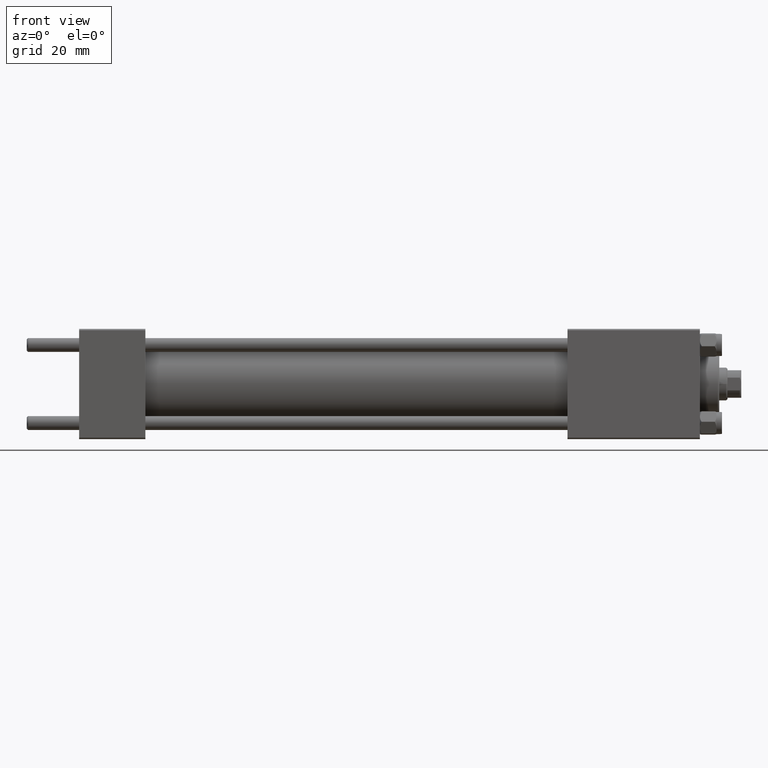
[diagram: clean part render]
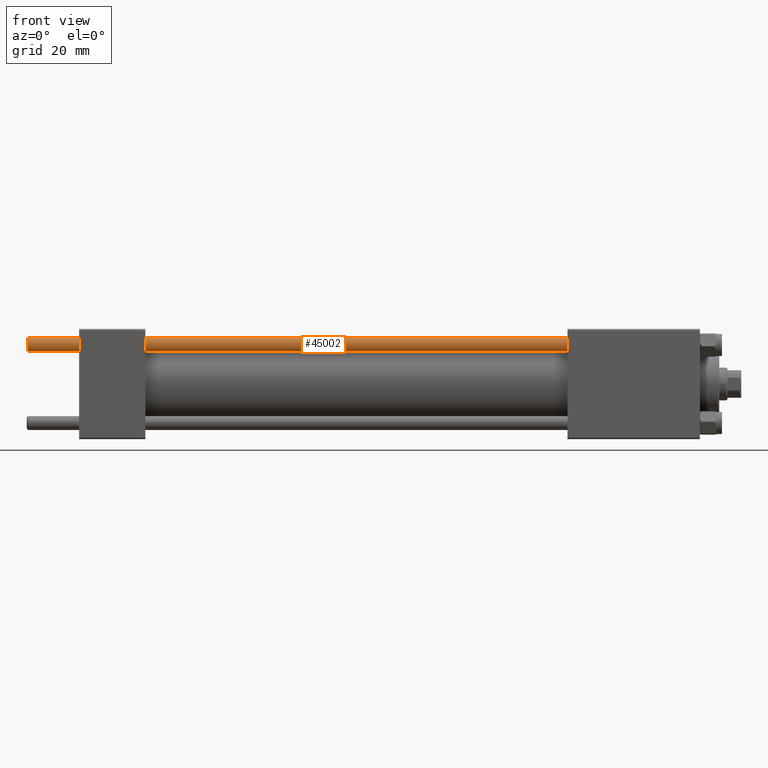
[diagram: same view with one face highlighted and labeled with its STEP entity id]
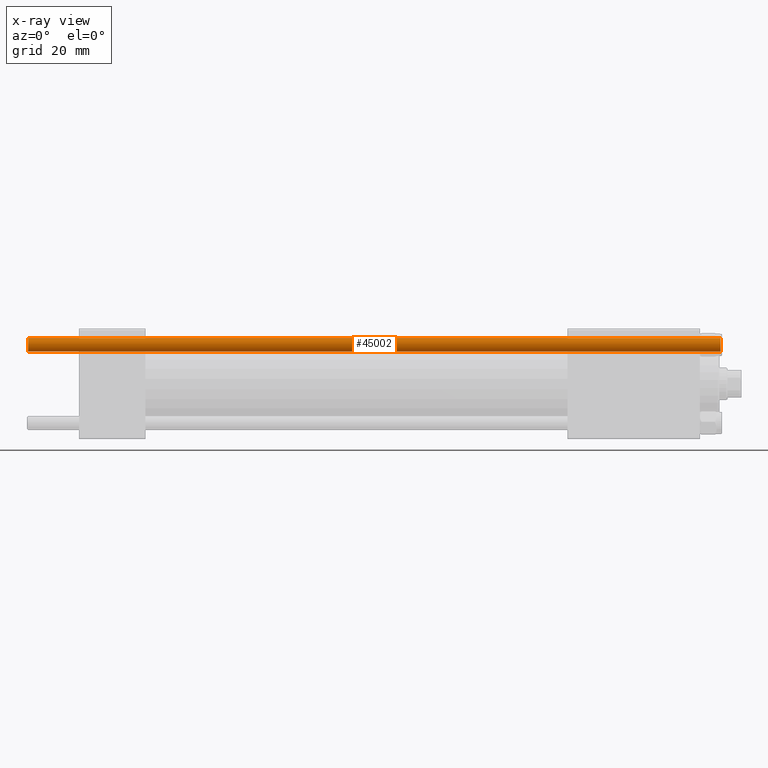
[diagram: x-ray of the same camera — body ghosted, the highlighted face saturated]
A machine part, front view. The second image highlights one B-rep face of the part: STEP entity #45002.
The next image is the same camera in x-ray: the body ghosted, the highlighted face saturated — about 0% of this face is hidden behind the body in this view.
In plain terms, the highlighted cylindrical surface (edge-blend (fillet) strip) has radius 2.5 mm, axis along (1, -0, 0).
Its self-contained STEP definition (entity closure, byte-faithful):
#579 = EDGE_CURVE ( 'NONE', #8456, #40892, #44209, .T. ) ;
#613 = VERTEX_POINT ( 'NONE', #1534 ) ;
#747 = ORIENTED_EDGE ( 'NONE', *, *, #24050, .T. ) ;
#866 = CARTESIAN_POINT ( 'NONE',  ( -2.500000000000000000, 0.000000000000000000, 0.5000000000000004441 ) ) ;
#1534 = CARTESIAN_POINT ( 'NONE',  ( 2.500000000000000000, 3.061616997868383141E-16, 251.5000000000000000 ) ) ;
#2275 = DIRECTION ( 'NONE',  ( -0.000000000000000000, -0.000000000000000000, -1.000000000000000000 ) ) ;
#3713 = EDGE_CURVE ( 'NONE', #48394, #40892, #43572, .T. ) ;
#4668 = DIRECTION ( 'NONE',  ( -0.000000000000000000, -0.000000000000000000, 1.000000000000000000 ) ) ;
#4993 = ORIENTED_EDGE ( 'NONE', *, *, #579, .F. ) ;
#5838 = LINE ( 'NONE', #9155, #16689 ) ;
#6833 = ORIENTED_EDGE ( 'NONE', *, *, #3713, .T. ) ;
#7454 = CYLINDRICAL_SURFACE ( 'NONE', #39018, 2.500000000000000000 ) ;
#8297 = CARTESIAN_POINT ( 'NONE',  ( 0.000000000000000000, 0.000000000000000000, 251.5000000000000000 ) ) ;
#8456 = VERTEX_POINT ( 'NONE', #17719 ) ;
#9155 = CARTESIAN_POINT ( 'NONE',  ( 2.500000000000000000, 3.061616997868383141E-16, 252.0000000000000000 ) ) ;
#9653 = DIRECTION ( 'NONE',  ( -0.000000000000000000, -0.000000000000000000, -1.000000000000000000 ) ) ;
#12861 = DIRECTION ( 'NONE',  ( 1.000000000000000000, 0.000000000000000000, 0.000000000000000000 ) ) ;
#16689 = VECTOR ( 'NONE', #9653, 1000.000000000000000 ) ;
#16993 = AXIS2_PLACEMENT_3D ( 'NONE', #31698, #4668, #39003 ) ;
#17719 = CARTESIAN_POINT ( 'NONE',  ( -2.500000000000000000, 0.000000000000000000, 251.5000000000000000 ) ) ;
#19889 = EDGE_LOOP ( 'NONE', ( #39234, #747, #6833, #4993 ) ) ;
#21540 = CARTESIAN_POINT ( 'NONE',  ( 2.500000000000000000, 3.061616997868383141E-16, 0.5000000000000004441 ) ) ;
#24050 = EDGE_CURVE ( 'NONE', #613, #48394, #5838, .T. ) ;
#31698 = CARTESIAN_POINT ( 'NONE',  ( 0.000000000000000000, 0.000000000000000000, 0.5000000000000004441 ) ) ;
#32625 = CIRCLE ( 'NONE', #42185, 2.500000000000000000 ) ;
#37048 = VECTOR ( 'NONE', #2275, 1000.000000000000000 ) ;
#38008 = DIRECTION ( 'NONE',  ( -0.000000000000000000, -0.000000000000000000, -1.000000000000000000 ) ) ;
#38501 = FACE_OUTER_BOUND ( 'NONE', #19889, .T. ) ;
#38830 = DIRECTION ( 'NONE',  ( 0.000000000000000000, 0.000000000000000000, -1.000000000000000000 ) ) ;
#39003 = DIRECTION ( 'NONE',  ( 1.000000000000000000, 0.000000000000000000, 0.000000000000000000 ) ) ;
#39018 = AXIS2_PLACEMENT_3D ( 'NONE', #49347, #38008, #45819 ) ;
#39234 = ORIENTED_EDGE ( 'NONE', *, *, #42568, .T. ) ;
#40892 = VERTEX_POINT ( 'NONE', #866 ) ;
#40919 = CARTESIAN_POINT ( 'NONE',  ( -2.500000000000000000, 0.000000000000000000, 252.0000000000000000 ) ) ;
#42185 = AXIS2_PLACEMENT_3D ( 'NONE', #8297, #38830, #12861 ) ;
#42568 = EDGE_CURVE ( 'NONE', #8456, #613, #32625, .T. ) ;
#43572 = CIRCLE ( 'NONE', #16993, 2.500000000000000000 ) ;
#44209 = LINE ( 'NONE', #40919, #37048 ) ;
#45002 = ADVANCED_FACE ( 'NONE', ( #38501 ), #7454, .T. ) ;
#45819 = DIRECTION ( 'NONE',  ( -1.000000000000000000, 0.000000000000000000, 0.000000000000000000 ) ) ;
#48394 = VERTEX_POINT ( 'NONE', #21540 ) ;
#49347 = CARTESIAN_POINT ( 'NONE',  ( 0.000000000000000000, 0.000000000000000000, 252.0000000000000000 ) ) ;